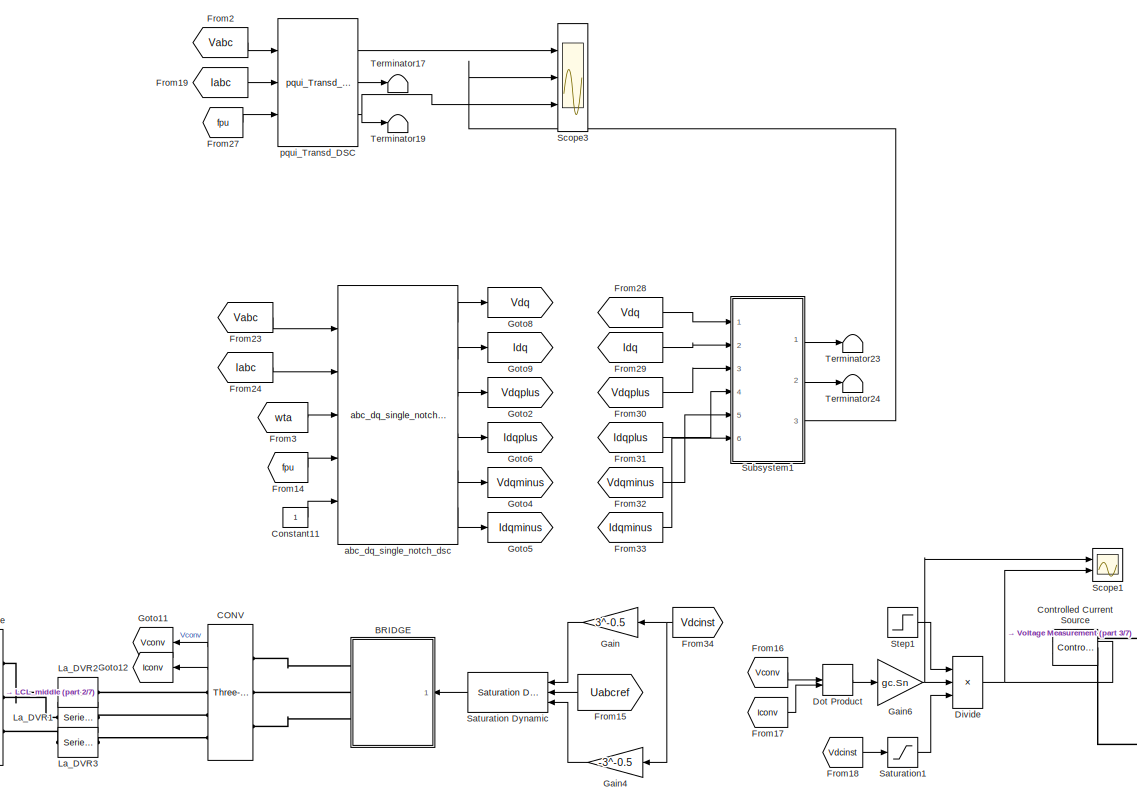
[diagram: root canvas - part 1/7, top center region]
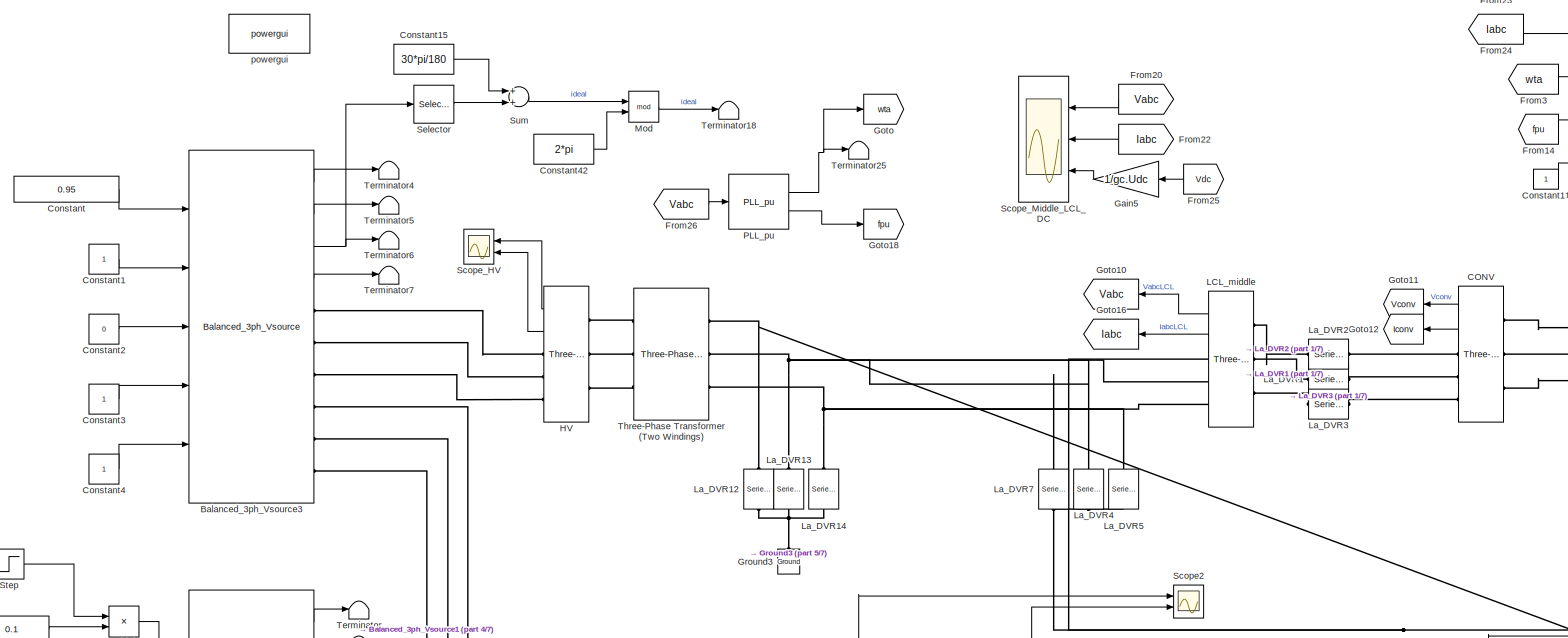
[diagram: root canvas - part 2/7, top left region]
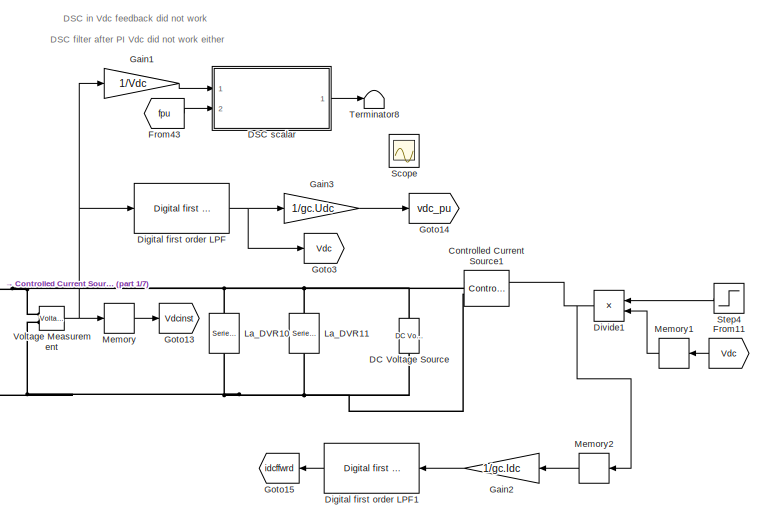
[diagram: root canvas - part 3/7, top right region]
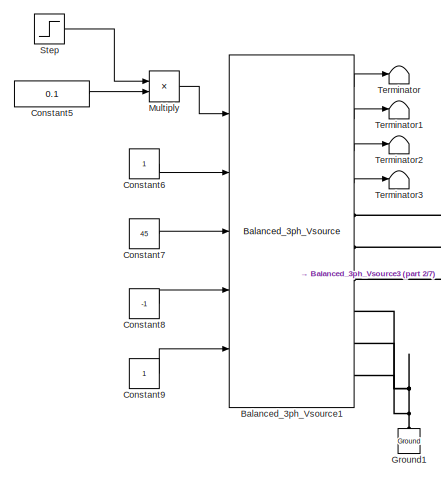
[diagram: root canvas - part 4/7, middle left region]
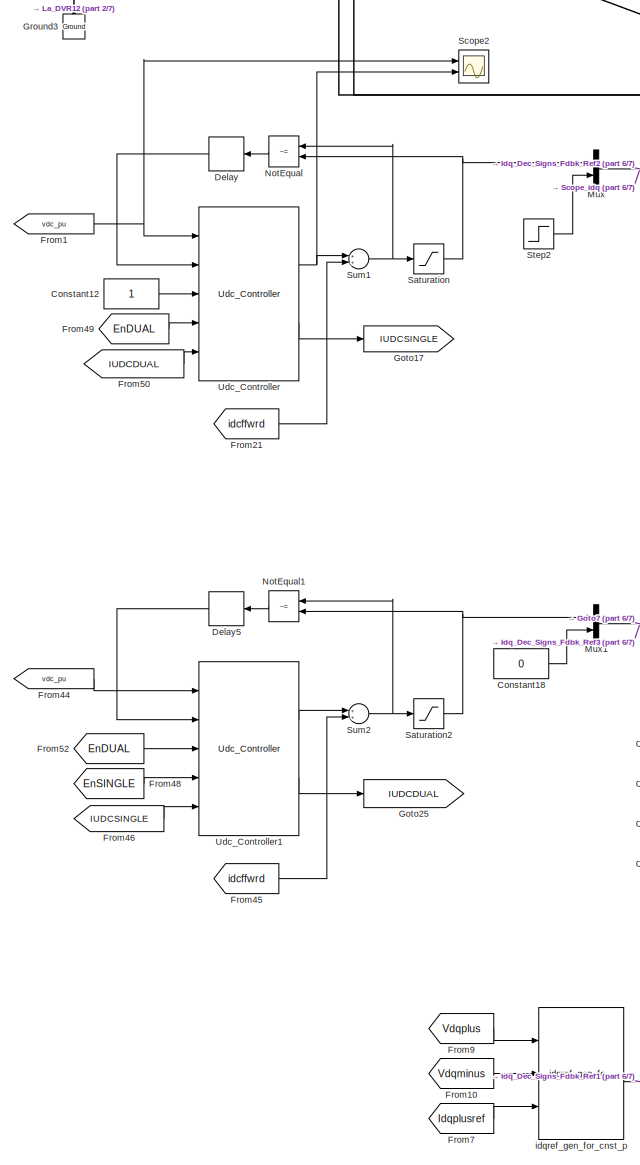
[diagram: root canvas - part 5/7, central region]
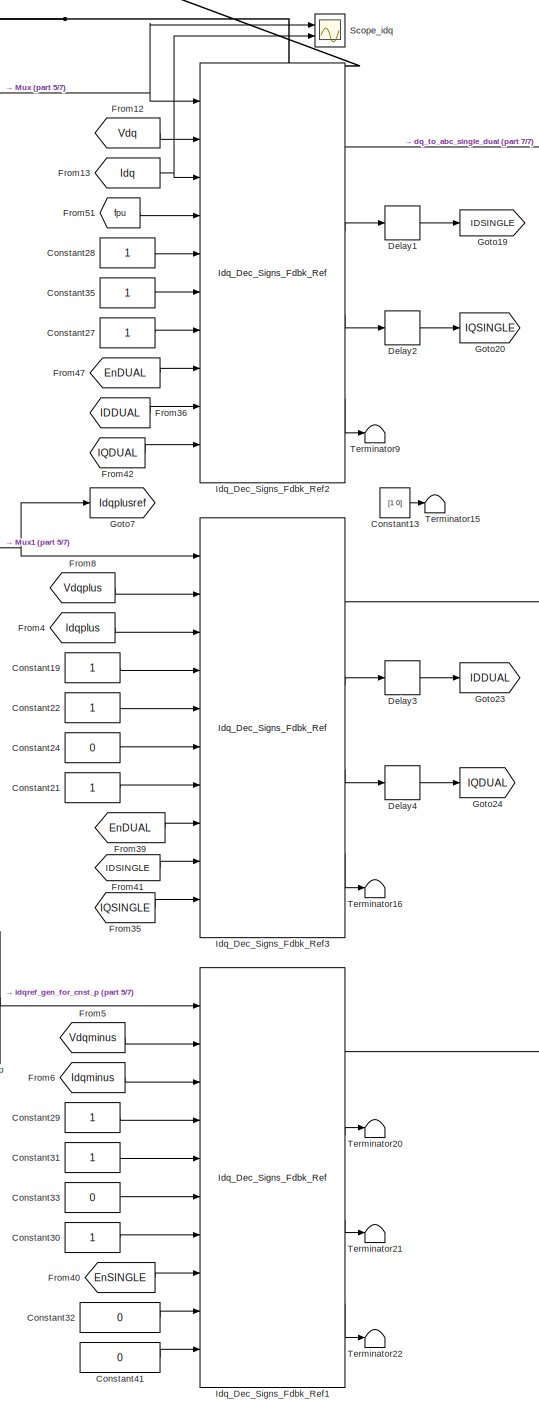
[diagram: root canvas - part 6/7, bottom center region]
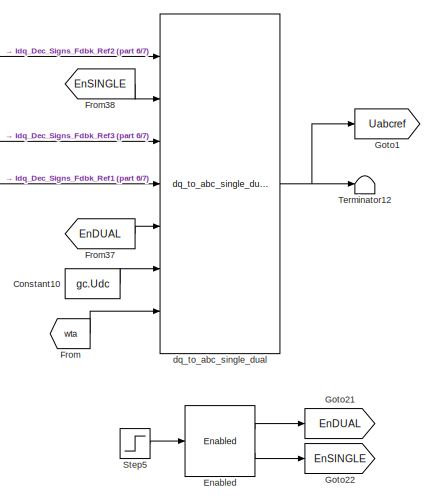
[diagram: root canvas - part 7/7, bottom right region]
MODEL slx_9799d4cba906
KIND model
CONFIG AbsTol = auto
CONFIG EnableMultiTasking = off
CONFIG FixedStep = Ts
CONFIG InitFcn = SequenceSeparation_script
CONFIG MaxStep = auto
CONFIG MinStep = auto
CONFIG RelTol = 1e-3
CONFIG SampleTimeConstraint = Unconstrained
CONFIG Solver = ode5
CONFIG SolverName = ode5
CONFIG StartTime = 0.0
CONFIG StopTime = 0.2
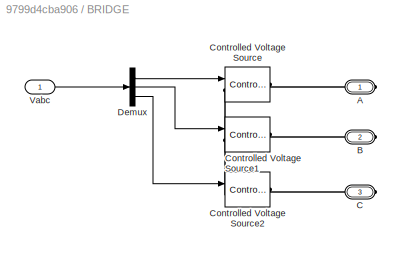
BLOCK [SubSystem] BRIDGE
  Ports = [1, 0, 0, 0, 0, 0, 3]
  RequestExecContextInheritance = off
BLOCK [PMIOPort] BRIDGE/A
  Side = Right
BLOCK [PMIOPort] BRIDGE/B
  Port = 2
  Side = Right
BLOCK [PMIOPort] BRIDGE/C
  Port = 3
  Side = Right
BLOCK [Reference] BRIDGE/Controlled Voltage Source  REF=powerlib/Electrical
Sources/Controlled Voltage Source
  Ports = [1, 0, 0, 0, 0, 1, 1]
  SourceBlock = powerlib/Electrical\nSources/Controlled Voltage Source
  SourceProductBaseCode = PS
  SourceProductName = Simscape Power Systems
  SourceType = Controlled Voltage Source
BLOCK [Reference] BRIDGE/Controlled Voltage Source1  REF=powerlib/Electrical
Sources/Controlled Voltage Source
  Ports = [1, 0, 0, 0, 0, 1, 1]
  SourceBlock = powerlib/Electrical\nSources/Controlled Voltage Source
  SourceProductBaseCode = PS
  SourceProductName = Simscape Power Systems
  SourceType = Controlled Voltage Source
BLOCK [Reference] BRIDGE/Controlled Voltage Source2  REF=powerlib/Electrical
Sources/Controlled Voltage Source
  Ports = [1, 0, 0, 0, 0, 1, 1]
  SourceBlock = powerlib/Electrical\nSources/Controlled Voltage Source
  SourceProductBaseCode = PS
  SourceProductName = Simscape Power Systems
  SourceType = Controlled Voltage Source
BLOCK [Demux] BRIDGE/Demux
  DisplayOption = bar
  Outputs = 3
  Ports = [1, 3]
BLOCK [Inport] BRIDGE/Vabc
  IconDisplay = Port number
BLOCK [Reference] Balanced_3ph_Vsource1  REF=pwrsysVSrc_202301/Balanced_3ph_Vsource
  Ports = [5, 4, 0, 0, 0, 0, 6]
  SourceBlock = pwrsysVSrc_202301/Balanced_3ph_Vsource
  SourceType = Three-phase balanced voltage source
BLOCK [Reference] Balanced_3ph_Vsource3  REF=pwrsysVSrc_202301/Balanced_3ph_Vsource
  Ports = [5, 4, 0, 0, 0, 0, 6]
  SourceBlock = pwrsysVSrc_202301/Balanced_3ph_Vsource
  SourceType = Three-phase balanced voltage source
BLOCK [Reference] CONV  REF=powerlib/Measurements/Three-Phase
V-I Measurement
  Ports = [0, 2, 0, 0, 0, 3, 3]
  SourceBlock = powerlib/Measurements/Three-Phase\nV-I Measurement
  SourceProductBaseCode = PS
  SourceProductName = Simscape Power Systems
  SourceType = Three-Phase VI Measurement
BLOCK [Constant] Constant
  Value = 0.95
BLOCK [Constant] Constant1
BLOCK [Constant] Constant10
  Value = gc.Udc
BLOCK [Constant] Constant11
BLOCK [Constant] Constant12
BLOCK [Constant] Constant13
  Value = [1 0]
BLOCK [Constant] Constant15
  Value = 30*pi/180
BLOCK [Constant] Constant18
  Value = 0
BLOCK [Constant] Constant19
BLOCK [Constant] Constant2
  Value = 0
BLOCK [Constant] Constant21
BLOCK [Constant] Constant22
BLOCK [Constant] Constant24
  Value = 0
BLOCK [Constant] Constant27
BLOCK [Constant] Constant28
BLOCK [Constant] Constant29
BLOCK [Constant] Constant3
BLOCK [Constant] Constant30
BLOCK [Constant] Constant31
BLOCK [Constant] Constant32
  Value = 0
BLOCK [Constant] Constant33
  Value = 0
BLOCK [Constant] Constant35
BLOCK [Constant] Constant4
BLOCK [Constant] Constant41
  Value = 0
BLOCK [Constant] Constant42
  Value = 2*pi
BLOCK [Constant] Constant5
  Value = 0.1
BLOCK [Constant] Constant6
BLOCK [Constant] Constant7
  Value = 45
BLOCK [Constant] Constant8
  Value = -1
BLOCK [Constant] Constant9
BLOCK [Reference] Controlled Current Source  REF=powerlib/Electrical
Sources/Controlled Current Source
  Ports = [1, 0, 0, 0, 0, 1, 1]
  SourceBlock = powerlib/Electrical\nSources/Controlled Current Source
  SourceProductBaseCode = PS
  SourceProductName = Simscape Power Systems
  SourceType = Controlled Current Source
BLOCK [Reference] Controlled Current Source1  REF=powerlib/Electrical
Sources/Controlled Current Source
  Ports = [1, 0, 0, 0, 0, 1, 1]
  SourceBlock = powerlib/Electrical\nSources/Controlled Current Source
  SourceProductBaseCode = PS
  SourceProductName = Simscape Power Systems
  SourceType = Controlled Current Source
BLOCK [Reference] DC Voltage Source  REF=powerlib/Electrical
Sources/DC Voltage Source
  Commented = on
  Ports = [0, 0, 0, 0, 0, 1, 1]
  SourceBlock = powerlib/Electrical\nSources/DC Voltage Source
  SourceProductBaseCode = PS
  SourceProductName = Simscape Power Systems
  SourceType = DC Voltage Source
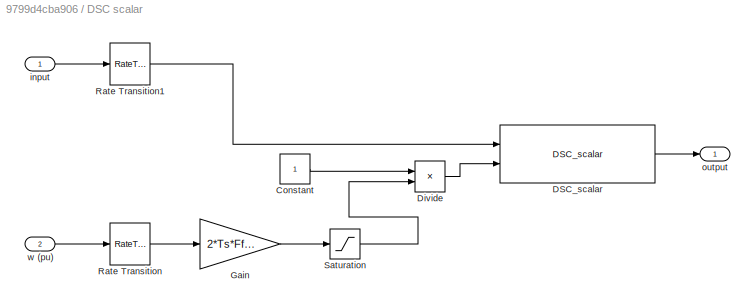
BLOCK [SubSystem] DSC scalar
  Commented = on
  Ports = [2, 1]
  RequestExecContextInheritance = off
  SystemSampleTime = Ts_cont
  TreatAsAtomicUnit = on
BLOCK [Constant] DSC scalar/Constant
BLOCK [Reference] DSC scalar/DSC_scalar  REF=pwrsysBasic_202301/DSC_scalar
  Ports = [2, 1]
  SourceBlock = pwrsysBasic_202301/DSC_scalar
  SourceType = Delayed signal cancellation of a scalar
BLOCK [Product] DSC scalar/Divide
  InputSameDT = off
  Inputs = */
  OutDataTypeStr = Inherit: Inherit via internal rule
  Ports = [2, 1]
  RndMeth = Floor
  SaturateOnIntegerOverflow = off
BLOCK [Gain] DSC scalar/Gain
  Gain = 2*Ts*Ffilt
  OutDataTypeStr = Inherit: Inherit via internal rule
  ParamDataTypeStr = Inherit: Inherit via internal rule
  SaturateOnIntegerOverflow = off
BLOCK [RateTransition] DSC scalar/Rate Transition
  InitialCondition = 1
  OutPortSampleTime = Ts
BLOCK [RateTransition] DSC scalar/Rate Transition1
  InitialCondition = 1
  OutPortSampleTime = Ts
BLOCK [Saturate] DSC scalar/Saturation
  InputPortMap = u0
  LowerLimit = 0.000001
  Ports = [1, 1]
  UpperLimit = inf
BLOCK [Inport] DSC scalar/input
  IconDisplay = Port number
BLOCK [Outport] DSC scalar/output
  IconDisplay = Port number
BLOCK [Inport] DSC scalar/w (pu)
  IconDisplay = Port number
  Port = 2
BLOCK [Delay] Delay
  DelayLength = 1
  InputPortMap = u0
  Ports = [1, 1]
  SampleTime = gc.Ts_control
BLOCK [Delay] Delay1
  DelayLength = 1
  InputPortMap = u0
  Ports = [1, 1]
  SampleTime = Ts_cont
BLOCK [Delay] Delay2
  DelayLength = 1
  InputPortMap = u0
  Ports = [1, 1]
  SampleTime = Ts_cont
BLOCK [Delay] Delay3
  DelayLength = 1
  InputPortMap = u0
  Ports = [1, 1]
  SampleTime = Ts_cont
BLOCK [Delay] Delay4
  DelayLength = 1
  InputPortMap = u0
  Ports = [1, 1]
  SampleTime = Ts_cont
BLOCK [Delay] Delay5
  DelayLength = 1
  InputPortMap = u0
  Ports = [1, 1]
  SampleTime = Ts_cont
BLOCK [Reference] Digital first order LPF  REF=pwrsysBasic_202301/Digital first order LPF
  Ports = [1, 1]
  SourceBlock = pwrsysBasic_202301/Digital first order LPF
  SourceType = Digital first-order low-pass filter
BLOCK [Reference] Digital first order LPF1  REF=pwrsysBasic_202301/Digital first order LPF
  Ports = [1, 1]
  SourceBlock = pwrsysBasic_202301/Digital first order LPF
  SourceType = Digital first-order low-pass filter
BLOCK [Product] Divide
  InputSameDT = off
  Inputs = **/
  OutDataTypeStr = Inherit: Inherit via internal rule
  Ports = [3, 1]
  RndMeth = Floor
  SaturateOnIntegerOverflow = off
BLOCK [Product] Divide1
  InputSameDT = off
  Inputs = */
  OutDataTypeStr = Inherit: Inherit via internal rule
  Ports = [2, 1]
  RndMeth = Floor
  SaturateOnIntegerOverflow = off
BLOCK [DotProduct] Dot Product
  OutDataTypeStr = Inherit: Inherit via internal rule
BLOCK [Reference] Enabled  REF=pwrsysBasic_202301/Enabled
  Ports = [1, 2]
  SourceBlock = pwrsysBasic_202301/Enabled
  SourceType = Enabled block
BLOCK [From] From
  GotoTag = wta
BLOCK [From] From1
  GotoTag = vdc_pu
BLOCK [From] From10
  GotoTag = Vdqminus
BLOCK [From] From11
  GotoTag = Vdc
BLOCK [From] From12
  GotoTag = Vdq
BLOCK [From] From13
  GotoTag = Idq
BLOCK [From] From14
  GotoTag = fpu
BLOCK [From] From15
  GotoTag = Uabcref
BLOCK [From] From16
  GotoTag = Vconv
BLOCK [From] From17
  GotoTag = Iconv
BLOCK [From] From18
  GotoTag = Vdcinst
BLOCK [From] From19
  GotoTag = Iabc
BLOCK [From] From2
  GotoTag = Vabc
BLOCK [From] From20
  GotoTag = Vabc
BLOCK [From] From21
  GotoTag = idcffwrd
BLOCK [From] From22
  GotoTag = Iabc
BLOCK [From] From23
  GotoTag = Vabc
BLOCK [From] From24
  GotoTag = Iabc
BLOCK [From] From25
  GotoTag = Vdc
BLOCK [From] From26
  GotoTag = Vabc
BLOCK [From] From27
  GotoTag = fpu
BLOCK [From] From28
  GotoTag = Vdq
BLOCK [From] From29
  GotoTag = Idq
BLOCK [From] From3
  GotoTag = wta
BLOCK [From] From30
  GotoTag = Vdqplus
BLOCK [From] From31
  GotoTag = Idqplus
BLOCK [From] From32
  GotoTag = Vdqminus
BLOCK [From] From33
  GotoTag = Idqminus
BLOCK [From] From34
  GotoTag = Vdcinst
BLOCK [From] From35
  GotoTag = IQSINGLE
BLOCK [From] From36
  GotoTag = IDDUAL
BLOCK [From] From37
  GotoTag = EnDUAL
BLOCK [From] From38
  GotoTag = EnSINGLE
BLOCK [From] From39
  GotoTag = EnDUAL
BLOCK [From] From4
  GotoTag = Idqplus
BLOCK [From] From40
  GotoTag = EnSINGLE
BLOCK [From] From41
  GotoTag = IDSINGLE
BLOCK [From] From42
  GotoTag = IQDUAL
BLOCK [From] From43
  Commented = on
  GotoTag = fpu
BLOCK [From] From44
  GotoTag = vdc_pu
BLOCK [From] From45
  GotoTag = idcffwrd
BLOCK [From] From46
  GotoTag = IUDCSINGLE
BLOCK [From] From47
  GotoTag = EnDUAL
BLOCK [From] From48
  GotoTag = EnSINGLE
BLOCK [From] From49
  GotoTag = EnDUAL
BLOCK [From] From5
  GotoTag = Vdqminus
BLOCK [From] From50
  GotoTag = IUDCDUAL
BLOCK [From] From51
  GotoTag = fpu
BLOCK [From] From52
  GotoTag = EnDUAL
BLOCK [From] From6
  GotoTag = Idqminus
BLOCK [From] From7
  GotoTag = Idqplusref
BLOCK [From] From8
  GotoTag = Vdqplus
BLOCK [From] From9
  GotoTag = Vdqplus
BLOCK [Gain] Gain
  Gain = 3^-0.5
  OutDataTypeStr = Inherit: Inherit via internal rule
  ParamDataTypeStr = Inherit: Inherit via internal rule
  SaturateOnIntegerOverflow = off
BLOCK [Gain] Gain1
  Commented = on
  Gain = 1/Vdc
  OutDataTypeStr = Inherit: Inherit via internal rule
  ParamDataTypeStr = Inherit: Inherit via internal rule
  SaturateOnIntegerOverflow = off
BLOCK [Gain] Gain2
  Gain = 1/gc.Idc
  OutDataTypeStr = Inherit: Inherit via internal rule
  ParamDataTypeStr = Inherit: Inherit via internal rule
  SaturateOnIntegerOverflow = off
BLOCK [Gain] Gain3
  Gain = 1/gc.Udc
  OutDataTypeStr = Inherit: Inherit via internal rule
  ParamDataTypeStr = Inherit: Inherit via internal rule
  SaturateOnIntegerOverflow = off
BLOCK [Gain] Gain4
  Gain = -3^-0.5
  OutDataTypeStr = Inherit: Inherit via internal rule
  ParamDataTypeStr = Inherit: Inherit via internal rule
  SaturateOnIntegerOverflow = off
BLOCK [Gain] Gain5
  Gain = 1/gc.Udc
  OutDataTypeStr = Inherit: Inherit via internal rule
  ParamDataTypeStr = Inherit: Inherit via internal rule
  SaturateOnIntegerOverflow = off
BLOCK [Gain] Gain6
  Gain = gc.Sn
  OutDataTypeStr = Inherit: Inherit via internal rule
  ParamDataTypeStr = Inherit: Inherit via internal rule
  SaturateOnIntegerOverflow = off
BLOCK [Goto] Goto
  GotoTag = wta
BLOCK [Goto] Goto1
  GotoTag = Uabcref
BLOCK [Goto] Goto10
  GotoTag = Vabc
BLOCK [Goto] Goto11
  GotoTag = Vconv
BLOCK [Goto] Goto12
  GotoTag = Iconv
BLOCK [Goto] Goto13
  GotoTag = Vdcinst
BLOCK [Goto] Goto14
  GotoTag = vdc_pu
BLOCK [Goto] Goto15
  GotoTag = idcffwrd
BLOCK [Goto] Goto16
  GotoTag = Iabc
BLOCK [Goto] Goto17
  GotoTag = IUDCSINGLE
BLOCK [Goto] Goto18
  GotoTag = fpu
BLOCK [Goto] Goto19
  GotoTag = IDSINGLE
BLOCK [Goto] Goto2
  GotoTag = Vdqplus
BLOCK [Goto] Goto20
  GotoTag = IQSINGLE
BLOCK [Goto] Goto21
  GotoTag = EnDUAL
BLOCK [Goto] Goto22
  GotoTag = EnSINGLE
BLOCK [Goto] Goto23
  GotoTag = IDDUAL
BLOCK [Goto] Goto24
  GotoTag = IQDUAL
BLOCK [Goto] Goto25
  GotoTag = IUDCDUAL
BLOCK [Goto] Goto3
  GotoTag = Vdc
BLOCK [Goto] Goto4
  GotoTag = Vdqminus
BLOCK [Goto] Goto5
  GotoTag = Idqminus
BLOCK [Goto] Goto6
  GotoTag = Idqplus
BLOCK [Goto] Goto7
  GotoTag = Idqplusref
BLOCK [Goto] Goto8
  GotoTag = Vdq
BLOCK [Goto] Goto9
  GotoTag = Idq
BLOCK [Reference] Ground1  REF=powerlib/Elements/Ground
  Ports = [0, 0, 0, 0, 0, 1]
  SourceBlock = powerlib/Elements/Ground
  SourceProductBaseCode = PS
  SourceProductName = Simscape Power Systems
  SourceType = Ground
BLOCK [Reference] Ground3  REF=powerlib/Elements/Ground
  Ports = [0, 0, 0, 0, 0, 1]
  SourceBlock = powerlib/Elements/Ground
  SourceProductBaseCode = PS
  SourceProductName = Simscape Power Systems
  SourceType = Ground
BLOCK [Reference] HV  REF=powerlib/Measurements/Three-Phase
V-I Measurement
  Ports = [0, 2, 0, 0, 0, 3, 3]
  SourceBlock = powerlib/Measurements/Three-Phase\nV-I Measurement
  SourceProductBaseCode = PS
  SourceProductName = Simscape Power Systems
  SourceType = Three-Phase VI Measurement
BLOCK [Reference] Idq_Dec_Signs_Fdbk_Ref1  REF=pwrsysVICtrl_202301/Idq_Dec_Signs_Fdbk_Ref
  Ports = [10, 4]
  SourceBlock = pwrsysVICtrl_202301/Idq_Dec_Signs_Fdbk_Ref
  SourceType = Idq Controller - PI regulator with anti-windup
BLOCK [Reference] Idq_Dec_Signs_Fdbk_Ref2  REF=pwrsysVICtrl_202301/Idq_Dec_Signs_Fdbk_Ref
  Ports = [10, 4]
  SourceBlock = pwrsysVICtrl_202301/Idq_Dec_Signs_Fdbk_Ref
  SourceType = Idq Controller - PI regulator with anti-windup
BLOCK [Reference] Idq_Dec_Signs_Fdbk_Ref3  REF=pwrsysVICtrl_202301/Idq_Dec_Signs_Fdbk_Ref
  Ports = [10, 4]
  SourceBlock = pwrsysVICtrl_202301/Idq_Dec_Signs_Fdbk_Ref
  SourceType = Idq Controller - PI regulator with anti-windup
BLOCK [Reference] LCL_middle  REF=powerlib/Measurements/Three-Phase
V-I Measurement
  Ports = [0, 2, 0, 0, 0, 3, 3]
  SourceBlock = powerlib/Measurements/Three-Phase\nV-I Measurement
  SourceProductBaseCode = PS
  SourceProductName = Simscape Power Systems
  SourceType = Three-Phase VI Measurement
BLOCK [Reference] La_DVR1  REF=powerlib/Elements/Series RLC Branch
  AttributesFormatString = \n
  Ports = [0, 0, 0, 0, 0, 1, 1]
  SourceBlock = powerlib/Elements/Series RLC Branch
  SourceProductBaseCode = PS
  SourceProductName = Simscape Power Systems
  SourceType = Series RLC Branch
BLOCK [Reference] La_DVR10  REF=powerlib/Elements/Series RLC Branch
  AttributesFormatString = \n
  Ports = [0, 0, 0, 0, 0, 1, 1]
  SourceBlock = powerlib/Elements/Series RLC Branch
  SourceProductBaseCode = PS
  SourceProductName = Simscape Power Systems
  SourceType = Series RLC Branch
BLOCK [Reference] La_DVR11  REF=powerlib/Elements/Series RLC Branch
  AttributesFormatString = \n
  Ports = [0, 0, 0, 0, 0, 1, 1]
  SourceBlock = powerlib/Elements/Series RLC Branch
  SourceProductBaseCode = PS
  SourceProductName = Simscape Power Systems
  SourceType = Series RLC Branch
BLOCK [Reference] La_DVR12  REF=powerlib/Elements/Series RLC Branch
  AttributesFormatString = \n
  Ports = [0, 0, 0, 0, 0, 1, 1]
  SourceBlock = powerlib/Elements/Series RLC Branch
  SourceProductBaseCode = PS
  SourceProductName = Simscape Power Systems
  SourceType = Series RLC Branch
BLOCK [Reference] La_DVR13  REF=powerlib/Elements/Series RLC Branch
  AttributesFormatString = \n
  Ports = [0, 0, 0, 0, 0, 1, 1]
  SourceBlock = powerlib/Elements/Series RLC Branch
  SourceProductBaseCode = PS
  SourceProductName = Simscape Power Systems
  SourceType = Series RLC Branch
BLOCK [Reference] La_DVR14  REF=powerlib/Elements/Series RLC Branch
  AttributesFormatString = \n
  Ports = [0, 0, 0, 0, 0, 1, 1]
  SourceBlock = powerlib/Elements/Series RLC Branch
  SourceProductBaseCode = PS
  SourceProductName = Simscape Power Systems
  SourceType = Series RLC Branch
BLOCK [Reference] La_DVR2  REF=powerlib/Elements/Series RLC Branch
  AttributesFormatString = \n
  Ports = [0, 0, 0, 0, 0, 1, 1]
  SourceBlock = powerlib/Elements/Series RLC Branch
  SourceProductBaseCode = PS
  SourceProductName = Simscape Power Systems
  SourceType = Series RLC Branch
BLOCK [Reference] La_DVR3  REF=powerlib/Elements/Series RLC Branch
  AttributesFormatString = \n
  Ports = [0, 0, 0, 0, 0, 1, 1]
  SourceBlock = powerlib/Elements/Series RLC Branch
  SourceProductBaseCode = PS
  SourceProductName = Simscape Power Systems
  SourceType = Series RLC Branch
BLOCK [Reference] La_DVR4  REF=powerlib/Elements/Series RLC Branch
  AttributesFormatString = \n
  Ports = [0, 0, 0, 0, 0, 1, 1]
  SourceBlock = powerlib/Elements/Series RLC Branch
  SourceProductBaseCode = PS
  SourceProductName = Simscape Power Systems
  SourceType = Series RLC Branch
BLOCK [Reference] La_DVR5  REF=powerlib/Elements/Series RLC Branch
  AttributesFormatString = \n
  Ports = [0, 0, 0, 0, 0, 1, 1]
  SourceBlock = powerlib/Elements/Series RLC Branch
  SourceProductBaseCode = PS
  SourceProductName = Simscape Power Systems
  SourceType = Series RLC Branch
BLOCK [Reference] La_DVR7  REF=powerlib/Elements/Series RLC Branch
  AttributesFormatString = \n
  Ports = [0, 0, 0, 0, 0, 1, 1]
  SourceBlock = powerlib/Elements/Series RLC Branch
  SourceProductBaseCode = PS
  SourceProductName = Simscape Power Systems
  SourceType = Series RLC Branch
BLOCK [Memory] Memory
  InitialCondition = gc.Udc
BLOCK [Memory] Memory1
  InitialCondition = 1
BLOCK [Memory] Memory2
BLOCK [Math] Mod
  Operator = mod
  Ports = [2, 1]
BLOCK [Product] Multiply
  InputSameDT = off
  OutDataTypeStr = Inherit: Inherit via internal rule
  Ports = [2, 1]
  RndMeth = Floor
  SaturateOnIntegerOverflow = off
BLOCK [Mux] Mux
  DisplayOption = bar
  Inputs = 2
  Ports = [2, 1]
BLOCK [Mux] Mux1
  DisplayOption = bar
  Inputs = 2
  Ports = [2, 1]
BLOCK [RelationalOperator] NotEqual
  InputSameDT = off
  Operator = ~=
  OutDataTypeStr = boolean
  Ports = [2, 1]
  RndMeth = Simplest
BLOCK [RelationalOperator] NotEqual1
  InputSameDT = off
  Operator = ~=
  OutDataTypeStr = boolean
  Ports = [2, 1]
  RndMeth = Simplest
BLOCK [Reference] PLL_pu  REF=pwrsysBasic_202301/PLL_pu
  Ports = [1, 2]
  SourceBlock = pwrsysBasic_202301/PLL_pu
  SourceType = Matlabs PLL with POS and NEG omega t output
BLOCK [Saturate] Saturation
  InputPortMap = u0
  LowerLimit = -1.5
  Ports = [1, 1]
  UpperLimit = 1.5
BLOCK [Reference] Saturation Dynamic  REF=simulink/Discontinuities/Saturation
Dynamic
  Ports = [3, 1]
  SourceBlock = simulink/Discontinuities/Saturation\nDynamic
  SourceProductBaseCode = SL
  SourceProductName = Simulink
  SourceType = Saturation Dynamic
BLOCK [Saturate] Saturation1
  InputPortMap = u0
  LowerLimit = 0.25*gc.Udc
  Ports = [1, 1]
  UpperLimit = 5*gc.Udc
BLOCK [Saturate] Saturation2
  InputPortMap = u0
  LowerLimit = -1.5
  Ports = [1, 1]
  UpperLimit = 1.5
BLOCK [Scope] Scope
  Commented = on
  Floating = off
  NumInputPorts = 2
  Ports = [2]
  ScopeSpecificationString = Simulink.scopes.TimeScopeBlockCfg('CurrentConfiguration', extmgr.ConfigurationSet(extmgr.Configuration('Core','General UI',true),extmgr.Configuration('Core','Source UI',true),extmgr.Configuration('Sources','WiredSimulink',true,'DataLoggingVariableName','ScopeData1'),extmgr.Configuration('Visuals','Time Domain',true,'SerializedDisplays',{struct('MinYLimReal','1026.29691','MaxYLimReal','1199.19552',...<+1526ch>
BLOCK [Scope] Scope1
  Floating = off
  NumInputPorts = 2
  Ports = [2]
  ScopeSpecificationString = Simulink.scopes.TimeScopeBlockCfg('CurrentConfiguration', extmgr.ConfigurationSet(extmgr.Configuration('Core','General UI',true),extmgr.Configuration('Core','Source UI',true),extmgr.Configuration('Sources','WiredSimulink',true,'DataLoggingVariableName','ScopeData1'),extmgr.Configuration('Visuals','Time Domain',true,'SerializedDisplays',{struct('MinYLimReal','-48603905.00071','MaxYLimReal','1858768...<+1458ch>
BLOCK [Scope] Scope2
  Floating = off
  NumInputPorts = 2
  Ports = [2]
  ScopeSpecificationString = Simulink.scopes.TimeScopeBlockCfg('CurrentConfiguration', extmgr.ConfigurationSet(extmgr.Configuration('Core','General UI',true),extmgr.Configuration('Core','Source UI',true),extmgr.Configuration('Sources','WiredSimulink',true,'DataLoggingVariableName','ScopeData7'),extmgr.Configuration('Visuals','Time Domain',true,'SerializedDisplays',{struct('MinYLimReal','-1.875','MaxYLimReal','1.875','YLabelRe...<+1451ch>
BLOCK [Scope] Scope3
  Floating = off
  NumInputPorts = 3
  Ports = [3]
  ScopeSpecificationString = Simulink.scopes.TimeScopeBlockCfg('CurrentConfiguration', extmgr.ConfigurationSet(extmgr.Configuration('Core','General UI',true),extmgr.Configuration('Core','Source UI',true),extmgr.Configuration('Sources','WiredSimulink',true,'DataLoggingVariableName','ScopeData2'),extmgr.Configuration('Visuals','Time Domain',true,'SerializedDisplays',{struct('MinYLimReal','-0.15238','MaxYLimReal','1.15113','YLab...<+2957ch>
BLOCK [Scope] Scope_HV
  Floating = off
  NumInputPorts = 2
  Ports = [2]
  ScopeSpecificationString = Simulink.scopes.TimeScopeBlockCfg('CurrentConfiguration', extmgr.ConfigurationSet(extmgr.Configuration('Core','General UI',true),extmgr.Configuration('Core','Source UI',true),extmgr.Configuration('Sources','WiredSimulink',true,'DataLoggingVariableName','ScopeData3'),extmgr.Configuration('Visuals','Time Domain',true,'SerializedDisplays',{struct('MinYLimReal','-2.5616','MaxYLimReal','2.90889','YLabe...<+2161ch>
BLOCK [Scope] Scope_Middle_LCL_DC
  Floating = off
  NumInputPorts = 3
  Ports = [3]
  ScopeSpecificationString = Simulink.scopes.TimeScopeBlockCfg('CurrentConfiguration', extmgr.ConfigurationSet(extmgr.Configuration('Core','General UI',true),extmgr.Configuration('Core','Source UI',true),extmgr.Configuration('Sources','WiredSimulink',true),extmgr.Configuration('Visuals','Time Domain',true,'SerializedDisplays',{struct('MinYLimReal','-1.19805','MaxYLimReal','1.19409','YLabelReal','','MinYLimMag','0.00000','MaxY...<+2910ch>
BLOCK [Scope] Scope_idq
  Floating = off
  NumInputPorts = 2
  Ports = [2]
  ScopeSpecificationString = Simulink.scopes.TimeScopeBlockCfg('CurrentConfiguration', extmgr.ConfigurationSet(extmgr.Configuration('Core','General UI',true),extmgr.Configuration('Core','Source UI',true),extmgr.Configuration('Sources','WiredSimulink',true,'DataLoggingVariableName','ScopeData1'),extmgr.Configuration('Visuals','Time Domain',true,'SerializedDisplays',{struct('MinYLimReal','-2.09953','MaxYLimReal','4.58004','YLab...<+2559ch>
BLOCK [Selector] Selector
  IndexOptions = Index vector (dialog)
  Indices = [1]
  InputPortWidth = 3
  OutputSizes = 1
  Ports = [1, 1]
BLOCK [Step] Step
  SampleTime = 0
  Time = 0.5
BLOCK [Step] Step1
  SampleTime = 0
  Time = gc.TenDCLinkExch
BLOCK [Step] Step2
  After = 0.5
  SampleTime = 0
  Time = 0.4
BLOCK [Step] Step4
  After = 0.5
  SampleTime = 0
  Time = 0.25*gc.Sn
BLOCK [Step] Step5
  SampleTime = 0
  Time = 0.6
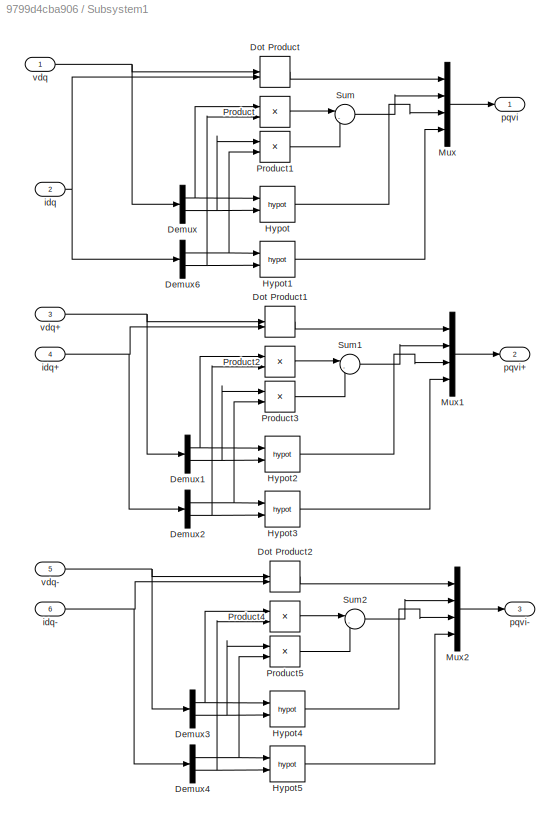
BLOCK [SubSystem] Subsystem1
  Ports = [6, 3]
  RequestExecContextInheritance = off
BLOCK [Demux] Subsystem1/Demux
  DisplayOption = bar
  Outputs = 2
  Ports = [1, 2]
BLOCK [Demux] Subsystem1/Demux1
  DisplayOption = bar
  Outputs = 2
  Ports = [1, 2]
BLOCK [Demux] Subsystem1/Demux2
  DisplayOption = bar
  Outputs = 2
  Ports = [1, 2]
BLOCK [Demux] Subsystem1/Demux3
  DisplayOption = bar
  Outputs = 2
  Ports = [1, 2]
BLOCK [Demux] Subsystem1/Demux4
  DisplayOption = bar
  Outputs = 2
  Ports = [1, 2]
BLOCK [Demux] Subsystem1/Demux6
  DisplayOption = bar
  Outputs = 2
  Ports = [1, 2]
BLOCK [DotProduct] Subsystem1/Dot Product
  OutDataTypeStr = Inherit: Inherit via internal rule
BLOCK [DotProduct] Subsystem1/Dot Product1
  OutDataTypeStr = Inherit: Inherit via internal rule
BLOCK [DotProduct] Subsystem1/Dot Product2
  OutDataTypeStr = Inherit: Inherit via internal rule
BLOCK [Math] Subsystem1/Hypot
  Operator = hypot
  Ports = [2, 1]
BLOCK [Math] Subsystem1/Hypot1
  Operator = hypot
  Ports = [2, 1]
BLOCK [Math] Subsystem1/Hypot2
  Operator = hypot
  Ports = [2, 1]
BLOCK [Math] Subsystem1/Hypot3
  Operator = hypot
  Ports = [2, 1]
BLOCK [Math] Subsystem1/Hypot4
  Operator = hypot
  Ports = [2, 1]
BLOCK [Math] Subsystem1/Hypot5
  Operator = hypot
  Ports = [2, 1]
BLOCK [Mux] Subsystem1/Mux
  DisplayOption = bar
  Ports = [4, 1]
BLOCK [Mux] Subsystem1/Mux1
  DisplayOption = bar
  Ports = [4, 1]
BLOCK [Mux] Subsystem1/Mux2
  DisplayOption = bar
  Ports = [4, 1]
BLOCK [Product] Subsystem1/Product
  InputSameDT = off
  OutDataTypeStr = Inherit: Inherit via internal rule
  Ports = [2, 1]
  RndMeth = Floor
  SaturateOnIntegerOverflow = off
BLOCK [Product] Subsystem1/Product1
  InputSameDT = off
  OutDataTypeStr = Inherit: Inherit via internal rule
  Ports = [2, 1]
  RndMeth = Floor
  SaturateOnIntegerOverflow = off
BLOCK [Product] Subsystem1/Product2
  InputSameDT = off
  OutDataTypeStr = Inherit: Inherit via internal rule
  Ports = [2, 1]
  RndMeth = Floor
  SaturateOnIntegerOverflow = off
BLOCK [Product] Subsystem1/Product3
  InputSameDT = off
  OutDataTypeStr = Inherit: Inherit via internal rule
  Ports = [2, 1]
  RndMeth = Floor
  SaturateOnIntegerOverflow = off
BLOCK [Product] Subsystem1/Product4
  InputSameDT = off
  OutDataTypeStr = Inherit: Inherit via internal rule
  Ports = [2, 1]
  RndMeth = Floor
  SaturateOnIntegerOverflow = off
BLOCK [Product] Subsystem1/Product5
  InputSameDT = off
  OutDataTypeStr = Inherit: Inherit via internal rule
  Ports = [2, 1]
  RndMeth = Floor
  SaturateOnIntegerOverflow = off
BLOCK [Sum] Subsystem1/Sum
  IconShape = round
  InputSameDT = off
  Inputs = |-+
  OutDataTypeStr = Inherit: Inherit via internal rule
  Ports = [2, 1]
  SaturateOnIntegerOverflow = off
BLOCK [Sum] Subsystem1/Sum1
  IconShape = round
  InputSameDT = off
  Inputs = |-+
  OutDataTypeStr = Inherit: Inherit via internal rule
  Ports = [2, 1]
  SaturateOnIntegerOverflow = off
BLOCK [Sum] Subsystem1/Sum2
  IconShape = round
  InputSameDT = off
  Inputs = |-+
  OutDataTypeStr = Inherit: Inherit via internal rule
  Ports = [2, 1]
  SaturateOnIntegerOverflow = off
BLOCK [Inport] Subsystem1/idq
  IconDisplay = Port number
  Port = 2
BLOCK [Inport] Subsystem1/idq+
  IconDisplay = Port number
  Port = 4
BLOCK [Inport] Subsystem1/idq-
  IconDisplay = Port number
  Port = 6
BLOCK [Outport] Subsystem1/pqvi
  IconDisplay = Port number
BLOCK [Outport] Subsystem1/pqvi+
  IconDisplay = Port number
  Port = 2
BLOCK [Outport] Subsystem1/pqvi-
  IconDisplay = Port number
  Port = 3
BLOCK [Inport] Subsystem1/vdq
  IconDisplay = Port number
BLOCK [Inport] Subsystem1/vdq+
  IconDisplay = Port number
  Port = 3
BLOCK [Inport] Subsystem1/vdq-
  IconDisplay = Port number
  Port = 5
BLOCK [Sum] Sum
  InputSameDT = off
  OutDataTypeStr = Inherit: Inherit via internal rule
  Ports = [2, 1]
  SaturateOnIntegerOverflow = off
BLOCK [Sum] Sum1
  InputSameDT = off
  OutDataTypeStr = Inherit: Inherit via internal rule
  Ports = [2, 1]
  SaturateOnIntegerOverflow = off
BLOCK [Sum] Sum2
  InputSameDT = off
  OutDataTypeStr = Inherit: Inherit via internal rule
  Ports = [2, 1]
  SaturateOnIntegerOverflow = off
BLOCK [Terminator] Terminator
BLOCK [Terminator] Terminator1
BLOCK [Terminator] Terminator12
BLOCK [Terminator] Terminator15
BLOCK [Terminator] Terminator16
BLOCK [Terminator] Terminator17
BLOCK [Terminator] Terminator18
BLOCK [Terminator] Terminator19
BLOCK [Terminator] Terminator2
BLOCK [Terminator] Terminator20
BLOCK [Terminator] Terminator21
BLOCK [Terminator] Terminator22
BLOCK [Terminator] Terminator23
BLOCK [Terminator] Terminator24
BLOCK [Terminator] Terminator25
BLOCK [Terminator] Terminator3
BLOCK [Terminator] Terminator4
BLOCK [Terminator] Terminator5
BLOCK [Terminator] Terminator6
BLOCK [Terminator] Terminator7
BLOCK [Terminator] Terminator8
BLOCK [Terminator] Terminator9
BLOCK [Reference] Three-Phase Transformer (Two Windings)  REF=powerlib/Elements/Three-Phase
Transformer
(Two Windings)
  Ports = [0, 0, 0, 0, 0, 3, 3]
  SourceBlock = powerlib/Elements/Three-Phase\nTransformer\n(Two Windings)
  SourceProductBaseCode = PS
  SourceProductName = Simscape Power Systems
  SourceType = Three-Phase Transformer (Two Windings)
BLOCK [Reference] Udc_Controller  REF=pwrsysVICtrl_202301/Udc_Controller
  Ports = [5, 2]
  SourceBlock = pwrsysVICtrl_202301/Udc_Controller
  SourceType = Udc Controller - PI regulator with anti-windup
BLOCK [Reference] Udc_Controller1  REF=pwrsysVICtrl_202301/Udc_Controller
  Ports = [5, 2]
  SourceBlock = pwrsysVICtrl_202301/Udc_Controller
  SourceType = Udc Controller - PI regulator with anti-windup
BLOCK [Reference] Voltage Measurement  REF=powerlib/Measurements/Voltage Measurement
  Ports = [0, 1, 0, 0, 0, 2]
  SourceBlock = powerlib/Measurements/Voltage Measurement
  SourceProductBaseCode = PS
  SourceProductName = Simscape Power Systems
  SourceType = Voltage Measurement
  UserDataPersistent = on
BLOCK [Reference] abc_dq_single_notch_dsc  REF=pwrsysTransf_202301/abc_dq_single_notch_dsc
  Ports = [5, 6]
  SourceBlock = pwrsysTransf_202301/abc_dq_single_notch_dsc
  SourceType = abc->dq with Matlab
BLOCK [Reference] dq_to_abc_single_dual  REF=pwrsysVICtrl_202301/dq_to_abc_single_dual
  Ports = [7, 1]
  SourceBlock = pwrsysVICtrl_202301/dq_to_abc_single_dual
  SourceType = Scaling of vdq ref and PWM gate generation
BLOCK [Reference] idqref_gen_for_cnst_p  REF=pwrsysVICtrl_202301/idqref_gen_for_cnst_p
  Ports = [3, 1]
  SourceBlock = pwrsysVICtrl_202301/idqref_gen_for_cnst_p
  SourceType = Negative sequence current reference calculation
BLOCK [Reference] powergui  REF=powerlib/powergui
  Ports = []
  Priority = 1
  SourceBlock = powerlib/powergui
  SourceProductBaseCode = PS
  SourceProductName = Simscape Power Systems
  SourceType = PSB option menu block
BLOCK [Reference] pqui_Transd_DSC  REF=pwrsysBasic_202301/pqui_Transd_DSC
  Ports = [3, 3]
  SourceBlock = pwrsysBasic_202301/pqui_Transd_DSC
  SourceType = DSC u i p q transducer - No zero sequence
ANNOTATION (root): DSC filter after PI Vdc did not work either
ANNOTATION (root): DSC in Vdc feedback did not work
LINE BRIDGE/Demux:1 -> BRIDGE/Controlled Voltage Source:1
LINE BRIDGE/Demux:2 -> BRIDGE/Controlled Voltage Source1:1
LINE BRIDGE/Demux:3 -> BRIDGE/Controlled Voltage Source2:1
LINE BRIDGE/Vabc:1 -> BRIDGE/Demux:1
LINE Balanced_3ph_Vsource1:1 -> Terminator:1
LINE Balanced_3ph_Vsource1:2 -> Terminator1:1
LINE Balanced_3ph_Vsource1:3 -> Terminator2:1
LINE Balanced_3ph_Vsource1:4 -> Terminator3:1
LINE Balanced_3ph_Vsource3:1 -> Terminator4:1
LINE Balanced_3ph_Vsource3:2 -> Terminator5:1
NET Balanced_3ph_Vsource3:3 -> Selector:1, Terminator6:1
LINE Balanced_3ph_Vsource3:4 -> Terminator7:1
LINE CONV:1 -> Goto11:1
LINE CONV:2 -> Goto12:1
LINE Constant10:1 -> dq_to_abc_single_dual:6
LINE Constant11:1 -> abc_dq_single_notch_dsc:5
LINE Constant12:1 -> Udc_Controller:3
LINE Constant13:1 -> Terminator15:1
LINE Constant15:1 -> Sum:1
LINE Constant18:1 -> Mux1:2
LINE Constant19:1 -> Idq_Dec_Signs_Fdbk_Ref3:4
LINE Constant1:1 -> Balanced_3ph_Vsource3:2
LINE Constant21:1 -> Idq_Dec_Signs_Fdbk_Ref3:7
LINE Constant22:1 -> Idq_Dec_Signs_Fdbk_Ref3:5
LINE Constant24:1 -> Idq_Dec_Signs_Fdbk_Ref3:6
LINE Constant27:1 -> Idq_Dec_Signs_Fdbk_Ref2:7
LINE Constant28:1 -> Idq_Dec_Signs_Fdbk_Ref2:5
LINE Constant29:1 -> Idq_Dec_Signs_Fdbk_Ref1:4
LINE Constant2:1 -> Balanced_3ph_Vsource3:3
LINE Constant30:1 -> Idq_Dec_Signs_Fdbk_Ref1:7
LINE Constant31:1 -> Idq_Dec_Signs_Fdbk_Ref1:5
LINE Constant32:1 -> Idq_Dec_Signs_Fdbk_Ref1:9
LINE Constant33:1 -> Idq_Dec_Signs_Fdbk_Ref1:6
LINE Constant35:1 -> Idq_Dec_Signs_Fdbk_Ref2:6
LINE Constant3:1 -> Balanced_3ph_Vsource3:4
LINE Constant41:1 -> Idq_Dec_Signs_Fdbk_Ref1:10
LINE Constant42:1 -> Mod:2
LINE Constant4:1 -> Balanced_3ph_Vsource3:5
LINE Constant5:1 -> Multiply:2
LINE Constant6:1 -> Balanced_3ph_Vsource1:2
LINE Constant7:1 -> Balanced_3ph_Vsource1:3
LINE Constant8:1 -> Balanced_3ph_Vsource1:4
LINE Constant9:1 -> Balanced_3ph_Vsource1:5
LINE Constant:1 -> Balanced_3ph_Vsource3:1
LINE DSC scalar/Constant:1 -> DSC scalar/Divide:1
LINE DSC scalar/DSC_scalar:1 -> DSC scalar/output:1
LINE DSC scalar/Divide:1 -> DSC scalar/DSC_scalar:2
LINE DSC scalar/Gain:1 -> DSC scalar/Saturation:1
LINE DSC scalar/Rate Transition1:1 -> DSC scalar/DSC_scalar:1
LINE DSC scalar/Rate Transition:1 -> DSC scalar/Gain:1
LINE DSC scalar/Saturation:1 -> DSC scalar/Divide:2
LINE DSC scalar/input:1 -> DSC scalar/Rate Transition1:1
LINE DSC scalar/w (pu):1 -> DSC scalar/Rate Transition:1
LINE DSC scalar:1 -> Terminator8:1
LINE Delay1:1 -> Goto19:1
LINE Delay2:1 -> Goto20:1
LINE Delay3:1 -> Goto23:1
LINE Delay4:1 -> Goto24:1
LINE Delay5:1 -> Udc_Controller1:2
LINE Delay:1 -> Udc_Controller:2
LINE Digital first order LPF1:1 -> Goto15:1
NET Digital first order LPF:1 -> Gain3:1, Goto3:1
NET Divide1:1 -> Controlled Current Source1:1, Memory2:1
NET Divide:1 -> Controlled Current Source:1, Scope1:2
LINE Dot Product:1 -> Gain6:1
LINE Enabled:1 -> Goto21:1
LINE Enabled:2 -> Goto22:1
LINE From10:1 -> idqref_gen_for_cnst_p:2
LINE From11:1 -> Memory1:1
LINE From12:1 -> Idq_Dec_Signs_Fdbk_Ref2:2
NET From13:1 -> Idq_Dec_Signs_Fdbk_Ref2:3, Scope_idq:2
LINE From14:1 -> abc_dq_single_notch_dsc:4
LINE From15:1 -> Saturation Dynamic:2
LINE From16:1 -> Dot Product:1
LINE From17:1 -> Dot Product:2
LINE From18:1 -> Saturation1:1
LINE From19:1 -> pqui_Transd_DSC:2
NET From1:1 -> Scope2:1, Udc_Controller:1
LINE From20:1 -> Scope_Middle_LCL_DC:1
LINE From21:1 -> Sum1:2
LINE From22:1 -> Scope_Middle_LCL_DC:2
LINE From23:1 -> abc_dq_single_notch_dsc:1
LINE From24:1 -> abc_dq_single_notch_dsc:2
LINE From25:1 -> Gain5:1
LINE From26:1 -> PLL_pu:1
LINE From27:1 -> pqui_Transd_DSC:3
LINE From28:1 -> Subsystem1:1
LINE From29:1 -> Subsystem1:2
LINE From2:1 -> pqui_Transd_DSC:1
LINE From30:1 -> Subsystem1:3
LINE From31:1 -> Subsystem1:4
LINE From32:1 -> Subsystem1:5
LINE From33:1 -> Subsystem1:6
NET From34:1 -> Gain4:1, Gain:1
LINE From35:1 -> Idq_Dec_Signs_Fdbk_Ref3:10
LINE From36:1 -> Idq_Dec_Signs_Fdbk_Ref2:9
LINE From37:1 -> dq_to_abc_single_dual:5
LINE From38:1 -> dq_to_abc_single_dual:2
LINE From39:1 -> Idq_Dec_Signs_Fdbk_Ref3:8
LINE From3:1 -> abc_dq_single_notch_dsc:3
LINE From40:1 -> Idq_Dec_Signs_Fdbk_Ref1:8
LINE From41:1 -> Idq_Dec_Signs_Fdbk_Ref3:9
LINE From42:1 -> Idq_Dec_Signs_Fdbk_Ref2:10
LINE From43:1 -> DSC scalar:2
LINE From44:1 -> Udc_Controller1:1
LINE From45:1 -> Sum2:2
LINE From46:1 -> Udc_Controller1:5
LINE From47:1 -> Idq_Dec_Signs_Fdbk_Ref2:8
LINE From48:1 -> Udc_Controller1:4
LINE From49:1 -> Udc_Controller:4
LINE From4:1 -> Idq_Dec_Signs_Fdbk_Ref3:3
LINE From50:1 -> Udc_Controller:5
LINE From51:1 -> Idq_Dec_Signs_Fdbk_Ref2:4
LINE From52:1 -> Udc_Controller1:3
LINE From5:1 -> Idq_Dec_Signs_Fdbk_Ref1:2
LINE From6:1 -> Idq_Dec_Signs_Fdbk_Ref1:3
LINE From7:1 -> idqref_gen_for_cnst_p:3
LINE From8:1 -> Idq_Dec_Signs_Fdbk_Ref3:2
LINE From9:1 -> idqref_gen_for_cnst_p:1
LINE From:1 -> dq_to_abc_single_dual:7
LINE Gain1:1 -> DSC scalar:1
LINE Gain2:1 -> Digital first order LPF1:1
LINE Gain3:1 -> Goto14:1
LINE Gain4:1 -> Saturation Dynamic:3
LINE Gain5:1 -> Scope_Middle_LCL_DC:3
NET Gain6:1 -> Divide:2, Scope1:1
LINE Gain:1 -> Saturation Dynamic:1
LINE HV:1 -> Scope_HV:1
LINE HV:2 -> Scope_HV:2
LINE Idq_Dec_Signs_Fdbk_Ref1:1 -> dq_to_abc_single_dual:4
LINE Idq_Dec_Signs_Fdbk_Ref1:2 -> Terminator20:1
LINE Idq_Dec_Signs_Fdbk_Ref1:3 -> Terminator21:1
LINE Idq_Dec_Signs_Fdbk_Ref1:4 -> Terminator22:1
LINE Idq_Dec_Signs_Fdbk_Ref2:1 -> dq_to_abc_single_dual:1
LINE Idq_Dec_Signs_Fdbk_Ref2:2 -> Delay1:1
LINE Idq_Dec_Signs_Fdbk_Ref2:3 -> Delay2:1
LINE Idq_Dec_Signs_Fdbk_Ref2:4 -> Terminator9:1
LINE Idq_Dec_Signs_Fdbk_Ref3:1 -> dq_to_abc_single_dual:3
LINE Idq_Dec_Signs_Fdbk_Ref3:2 -> Delay3:1
LINE Idq_Dec_Signs_Fdbk_Ref3:3 -> Delay4:1
LINE Idq_Dec_Signs_Fdbk_Ref3:4 -> Terminator16:1
LINE LCL_middle:1 -> Goto10:1
LINE LCL_middle:2 -> Goto16:1
LINE Memory1:1 -> Divide1:2
LINE Memory2:1 -> Gain2:1
LINE Memory:1 -> Goto13:1
LINE Mod:1 -> Terminator18:1
LINE Multiply:1 -> Balanced_3ph_Vsource1:1
NET Mux1:1 -> Goto7:1, Idq_Dec_Signs_Fdbk_Ref3:1
NET Mux:1 -> Idq_Dec_Signs_Fdbk_Ref2:1, Scope_idq:1
LINE NotEqual1:1 -> Delay5:1
LINE NotEqual:1 -> Delay:1
NET PLL_pu:1 -> Goto:1, Terminator25:1
LINE PLL_pu:2 -> Goto18:1
LINE Saturation Dynamic:1 -> BRIDGE:1
LINE Saturation1:1 -> Divide:3
NET Saturation2:1 -> Mux1:1, NotEqual1:2
NET Saturation:1 -> Mux:1, NotEqual:2
LINE Selector:1 -> Sum:2
LINE Step1:1 -> Divide:1
LINE Step2:1 -> Mux:2
LINE Step4:1 -> Divide1:1
LINE Step5:1 -> Enabled:1
LINE Step:1 -> Multiply:1
NET Subsystem1/Demux1:1 -> Subsystem1/Hypot2:1, Subsystem1/Product2:1
NET Subsystem1/Demux1:2 -> Subsystem1/Hypot2:2, Subsystem1/Product3:1
NET Subsystem1/Demux2:1 -> Subsystem1/Hypot3:1, Subsystem1/Product3:2
NET Subsystem1/Demux2:2 -> Subsystem1/Hypot3:2, Subsystem1/Product2:2
NET Subsystem1/Demux3:1 -> Subsystem1/Hypot4:1, Subsystem1/Product4:1
NET Subsystem1/Demux3:2 -> Subsystem1/Hypot4:2, Subsystem1/Product5:1
NET Subsystem1/Demux4:1 -> Subsystem1/Hypot5:1, Subsystem1/Product5:2
NET Subsystem1/Demux4:2 -> Subsystem1/Hypot5:2, Subsystem1/Product4:2
NET Subsystem1/Demux6:1 -> Subsystem1/Hypot1:1, Subsystem1/Product1:2
NET Subsystem1/Demux6:2 -> Subsystem1/Hypot1:2, Subsystem1/Product:2
NET Subsystem1/Demux:1 -> Subsystem1/Hypot:1, Subsystem1/Product:1
NET Subsystem1/Demux:2 -> Subsystem1/Hypot:2, Subsystem1/Product1:1
LINE Subsystem1/Dot Product1:1 -> Subsystem1/Mux1:1
LINE Subsystem1/Dot Product2:1 -> Subsystem1/Mux2:1
LINE Subsystem1/Dot Product:1 -> Subsystem1/Mux:1
LINE Subsystem1/Hypot1:1 -> Subsystem1/Mux:4
LINE Subsystem1/Hypot2:1 -> Subsystem1/Mux1:3
LINE Subsystem1/Hypot3:1 -> Subsystem1/Mux1:4
LINE Subsystem1/Hypot4:1 -> Subsystem1/Mux2:3
LINE Subsystem1/Hypot5:1 -> Subsystem1/Mux2:4
LINE Subsystem1/Hypot:1 -> Subsystem1/Mux:3
LINE Subsystem1/Mux1:1 -> Subsystem1/pqvi+:1
LINE Subsystem1/Mux2:1 -> Subsystem1/pqvi-:1
LINE Subsystem1/Mux:1 -> Subsystem1/pqvi:1
LINE Subsystem1/Product1:1 -> Subsystem1/Sum:2
LINE Subsystem1/Product2:1 -> Subsystem1/Sum1:1
LINE Subsystem1/Product3:1 -> Subsystem1/Sum1:2
LINE Subsystem1/Product4:1 -> Subsystem1/Sum2:1
LINE Subsystem1/Product5:1 -> Subsystem1/Sum2:2
LINE Subsystem1/Product:1 -> Subsystem1/Sum:1
LINE Subsystem1/Sum1:1 -> Subsystem1/Mux1:2
LINE Subsystem1/Sum2:1 -> Subsystem1/Mux2:2
LINE Subsystem1/Sum:1 -> Subsystem1/Mux:2
NET Subsystem1/idq+:1 -> Subsystem1/Demux2:1, Subsystem1/Dot Product1:2
NET Subsystem1/idq-:1 -> Subsystem1/Demux4:1, Subsystem1/Dot Product2:2
NET Subsystem1/idq:1 -> Subsystem1/Demux6:1, Subsystem1/Dot Product:2
NET Subsystem1/vdq+:1 -> Subsystem1/Demux1:1, Subsystem1/Dot Product1:1
NET Subsystem1/vdq-:1 -> Subsystem1/Demux3:1, Subsystem1/Dot Product2:1
NET Subsystem1/vdq:1 -> Subsystem1/Demux:1, Subsystem1/Dot Product:1
LINE Subsystem1:1 -> Terminator23:1
LINE Subsystem1:2 -> Terminator24:1
LINE Subsystem1:3 -> Scope3:2
NET Sum1:1 -> NotEqual:1, Saturation:1
NET Sum2:1 -> NotEqual1:1, Saturation2:1
LINE Sum:1 -> Mod:1
LINE Udc_Controller1:1 -> Sum2:1
LINE Udc_Controller1:2 -> Goto25:1
NET Udc_Controller:1 -> Scope2:2, Sum1:1
LINE Udc_Controller:2 -> Goto17:1
NET Voltage Measurement:1 -> Digital first order LPF:1, Gain1:1, Memory:1
LINE abc_dq_single_notch_dsc:1 -> Goto8:1
LINE abc_dq_single_notch_dsc:2 -> Goto9:1
LINE abc_dq_single_notch_dsc:3 -> Goto2:1
LINE abc_dq_single_notch_dsc:4 -> Goto6:1
LINE abc_dq_single_notch_dsc:5 -> Goto4:1
LINE abc_dq_single_notch_dsc:6 -> Goto5:1
NET dq_to_abc_single_dual:1 -> Goto1:1, Terminator12:1
LINE idqref_gen_for_cnst_p:1 -> Idq_Dec_Signs_Fdbk_Ref1:1
LINE pqui_Transd_DSC:1 -> Scope3:1
LINE pqui_Transd_DSC:2 -> Terminator17:1
NET pqui_Transd_DSC:3 -> Scope3:3, Terminator19:1
PLINE BRIDGE/A:RConn1 -- BRIDGE/Controlled Voltage Source:RConn1
PLINE BRIDGE/B:RConn1 -- BRIDGE/Controlled Voltage Source1:RConn1
PLINE BRIDGE/C:RConn1 -- BRIDGE/Controlled Voltage Source2:RConn1
PNET net1: BRIDGE/Controlled Voltage Source1:LConn1 -- BRIDGE/Controlled Voltage Source2:LConn1 -- BRIDGE/Controlled Voltage Source:LConn1
PLINE BRIDGE:RConn1 -- CONV:LConn1
PLINE BRIDGE:RConn2 -- CONV:LConn2
PLINE BRIDGE:RConn3 -- CONV:LConn3
PLINE Balanced_3ph_Vsource1:RConn1 -- Balanced_3ph_Vsource3:RConn4
PLINE Balanced_3ph_Vsource1:RConn2 -- Balanced_3ph_Vsource3:RConn5
PLINE Balanced_3ph_Vsource1:RConn3 -- Balanced_3ph_Vsource3:RConn6
PNET net2: Balanced_3ph_Vsource1:RConn4 -- Balanced_3ph_Vsource1:RConn5 -- Balanced_3ph_Vsource1:RConn6 -- Ground1:LConn1
PLINE Balanced_3ph_Vsource3:RConn1 -- HV:RConn1
PLINE Balanced_3ph_Vsource3:RConn2 -- HV:RConn2
PLINE Balanced_3ph_Vsource3:RConn3 -- HV:RConn3
PLINE CONV:RConn1 -- La_DVR2:LConn1
PLINE CONV:RConn2 -- La_DVR1:LConn1
PLINE CONV:RConn3 -- La_DVR3:LConn1
PNET net3: Controlled Current Source1:LConn1 -- Controlled Current Source:RConn1 -- DC Voltage Source:LConn1 -- La_DVR10:RConn1 -- La_DVR11:RConn1 -- Voltage Measurement:LConn2
PNET net4: Controlled Current Source1:RConn1 -- Controlled Current Source:LConn1 -- DC Voltage Source:RConn1 -- La_DVR10:LConn1 -- La_DVR11:LConn1 -- Voltage Measurement:LConn1
PNET net5: Ground3:LConn1 -- La_DVR12:LConn1 -- La_DVR13:LConn1 -- La_DVR14:LConn1
PLINE HV:LConn1 -- Three-Phase Transformer (Two Windings):LConn1
PLINE HV:LConn2 -- Three-Phase Transformer (Two Windings):LConn2
PLINE HV:LConn3 -- Three-Phase Transformer (Two Windings):LConn3
PLINE LCL_middle:LConn1 -- La_DVR2:RConn1
PLINE LCL_middle:LConn2 -- La_DVR1:RConn1
PLINE LCL_middle:LConn3 -- La_DVR3:RConn1
PNET net6: LCL_middle:RConn1 -- La_DVR12:RConn1 -- La_DVR7:RConn1 -- Three-Phase Transformer (Two Windings):RConn1
PNET net7: LCL_middle:RConn2 -- La_DVR13:RConn1 -- La_DVR4:RConn1 -- Three-Phase Transformer (Two Windings):RConn2
PNET net8: LCL_middle:RConn3 -- La_DVR14:RConn1 -- La_DVR5:RConn1 -- Three-Phase Transformer (Two Windings):RConn3
PNET net9: La_DVR4:LConn1 -- La_DVR5:LConn1 -- La_DVR7:LConn1
note: NET lines group one-source signal fan-out (src -> all destinations, sorted); 1:1 wires keep LINE; PNET lines group multi-terminal physical nets as a canonical sorted terminal list (undirected conserving connections); 2-terminal nets keep the pairwise PLINE form
